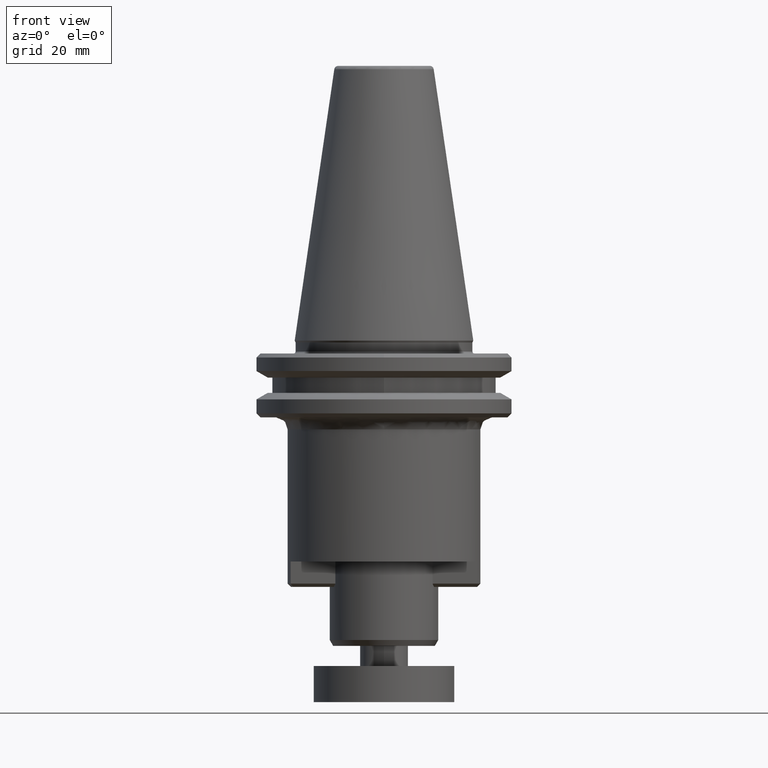
[diagram: clean part render]
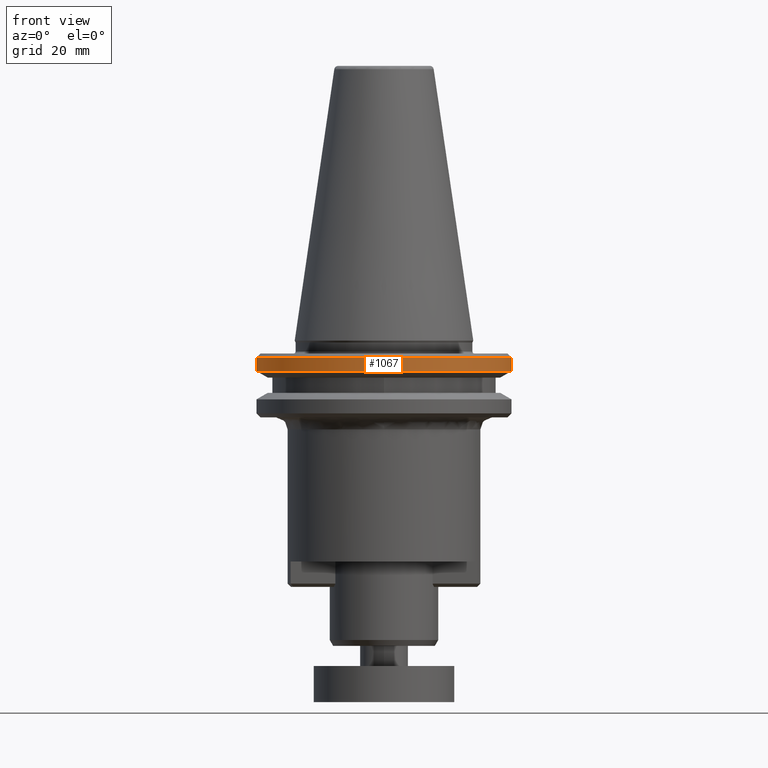
[diagram: same view with one face highlighted and labeled with its STEP entity id]
A machine part, front view. The second image highlights one B-rep face of the part: STEP entity #1067.
In plain terms, the highlighted cylindrical surface (partial cylindrical patch) has radius 31.75 mm, axis along (0, -0, 1).
Its self-contained STEP definition (entity closure, byte-faithful):
#9 = CARTESIAN_POINT ( 'NONE',  ( -31.74999999999983300, 3.888253587292836200E-015, -4.199999999999926500 ) ) ;
#127 = DIRECTION ( 'NONE',  ( 1.000000000000000000, 0.0000000000000000000, 0.0000000000000000000 ) ) ;
#196 = VECTOR ( 'NONE', #946, 1000.000000000000000 ) ;
#215 = CARTESIAN_POINT ( 'NONE',  ( 31.74999999999983300, 0.0000000000000000000, -4.199999999999926500 ) ) ;
#273 = CARTESIAN_POINT ( 'NONE',  ( 0.0000000000000000000, 0.0000000000000000000, -7.578163358172185200 ) ) ;
#308 = CARTESIAN_POINT ( 'NONE',  ( 31.75000000000000000, 0.0000000000000000000, -7.578163358000000300 ) ) ;
#310 = VECTOR ( 'NONE', #2393, 1000.000000000000000 ) ;
#401 = CIRCLE ( 'NONE', #2207, 31.74999999970176700 ) ;
#426 = DIRECTION ( 'NONE',  ( 1.000000000000000000, 0.0000000000000000000, 0.0000000000000000000 ) ) ;
#447 = ORIENTED_EDGE ( 'NONE', *, *, #1992, .F. ) ;
#469 = DIRECTION ( 'NONE',  ( 1.000000000000000000, 0.0000000000000000000, 0.0000000000000000000 ) ) ;
#582 = CARTESIAN_POINT ( 'NONE',  ( 31.74999999970176700, 0.0000000000000000000, -7.578163358172185200 ) ) ;
#785 = CARTESIAN_POINT ( 'NONE',  ( 0.0000000000000000000, 0.0000000000000000000, -4.199999999999926500 ) ) ;
#787 = EDGE_CURVE ( 'NONE', #1556, #1719, #2128, .T. ) ;
#924 = ORIENTED_EDGE ( 'NONE', *, *, #1424, .F. ) ;
#946 = DIRECTION ( 'NONE',  ( 0.0000000000000000000, -0.0000000000000000000, 1.000000000000000000 ) ) ;
#957 = VERTEX_POINT ( 'NONE', #2126 ) ;
#986 = DIRECTION ( 'NONE',  ( 1.000000000000000000, 0.0000000000000000000, 0.0000000000000000000 ) ) ;
#997 = AXIS2_PLACEMENT_3D ( 'NONE', #785, #2114, #986 ) ;
#1067 = ADVANCED_FACE ( 'NONE', ( #1823 ), #1729, .T. ) ;
#1072 = ORIENTED_EDGE ( 'NONE', *, *, #1548, .F. ) ;
#1187 = EDGE_CURVE ( 'NONE', #1556, #957, #401, .T. ) ;
#1335 = DIRECTION ( 'NONE',  ( -0.0000000000000000000, -0.0000000000000000000, 1.000000000000000000 ) ) ;
#1424 = EDGE_CURVE ( 'NONE', #957, #1677, #1462, .T. ) ;
#1462 = LINE ( 'NONE', #2071, #196 ) ;
#1548 = EDGE_CURVE ( 'NONE', #1668, #1719, #2380, .T. ) ;
#1556 = VERTEX_POINT ( 'NONE', #582 ) ;
#1631 = AXIS2_PLACEMENT_3D ( 'NONE', #1834, #2320, #426 ) ;
#1653 = ORIENTED_EDGE ( 'NONE', *, *, #787, .T. ) ;
#1668 = VERTEX_POINT ( 'NONE', #1964 ) ;
#1677 = VERTEX_POINT ( 'NONE', #9 ) ;
#1685 = DIRECTION ( 'NONE',  ( -0.0000000000000000000, 0.0000000000000000000, -1.000000000000000000 ) ) ;
#1719 = VERTEX_POINT ( 'NONE', #215 ) ;
#1729 = CYLINDRICAL_SURFACE ( 'NONE', #1631, 31.75000000000000000 ) ;
#1744 = EDGE_LOOP ( 'NONE', ( #924, #2358, #1653, #1072, #447 ) ) ;
#1823 = FACE_OUTER_BOUND ( 'NONE', #1744, .T. ) ;
#1834 = CARTESIAN_POINT ( 'NONE',  ( 0.0000000000000000000, 0.0000000000000000000, -7.578163358000000300 ) ) ;
#1964 = CARTESIAN_POINT ( 'NONE',  ( 3.888253587292837800E-015, -31.74999999999992500, -4.199999999999926500 ) ) ;
#1992 = EDGE_CURVE ( 'NONE', #1677, #1668, #2354, .T. ) ;
#2071 = CARTESIAN_POINT ( 'NONE',  ( -31.75000000000000000, 3.888253587292846500E-015, -7.578163358000000300 ) ) ;
#2080 = AXIS2_PLACEMENT_3D ( 'NONE', #2386, #1335, #127 ) ;
#2114 = DIRECTION ( 'NONE',  ( -0.0000000000000000000, -0.0000000000000000000, 1.000000000000000000 ) ) ;
#2126 = CARTESIAN_POINT ( 'NONE',  ( -31.74999999970176700, 3.888253587274584300E-015, -7.578163358172185200 ) ) ;
#2128 = LINE ( 'NONE', #308, #310 ) ;
#2207 = AXIS2_PLACEMENT_3D ( 'NONE', #273, #1685, #469 ) ;
#2320 = DIRECTION ( 'NONE',  ( 0.0000000000000000000, -0.0000000000000000000, 1.000000000000000000 ) ) ;
#2354 = CIRCLE ( 'NONE', #2080, 31.74999999999983300 ) ;
#2358 = ORIENTED_EDGE ( 'NONE', *, *, #1187, .F. ) ;
#2380 = CIRCLE ( 'NONE', #997, 31.74999999999983300 ) ;
#2386 = CARTESIAN_POINT ( 'NONE',  ( 0.0000000000000000000, 0.0000000000000000000, -4.199999999999926500 ) ) ;
#2393 = DIRECTION ( 'NONE',  ( 0.0000000000000000000, -0.0000000000000000000, 1.000000000000000000 ) ) ;